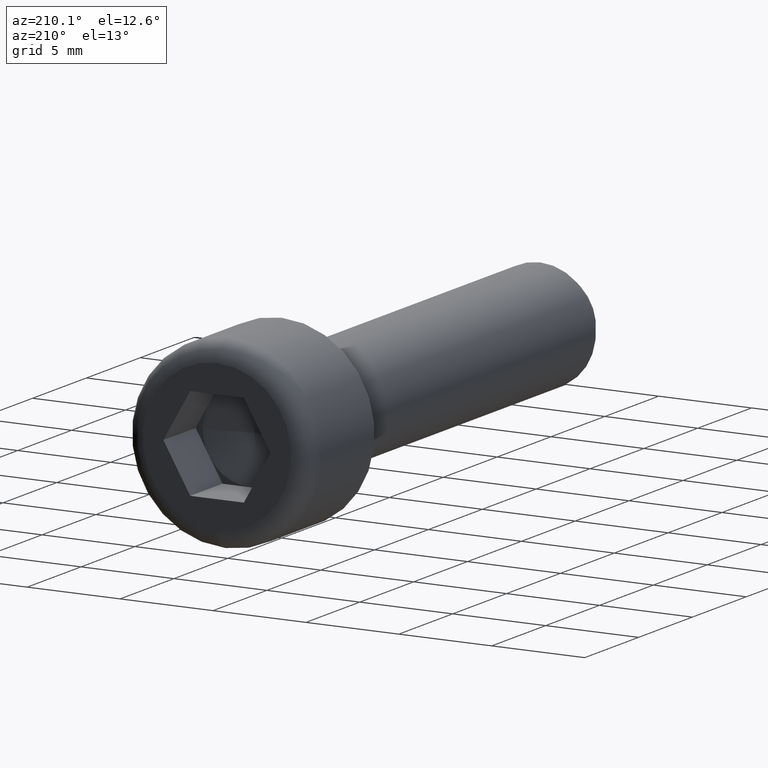
[diagram: clean part render]
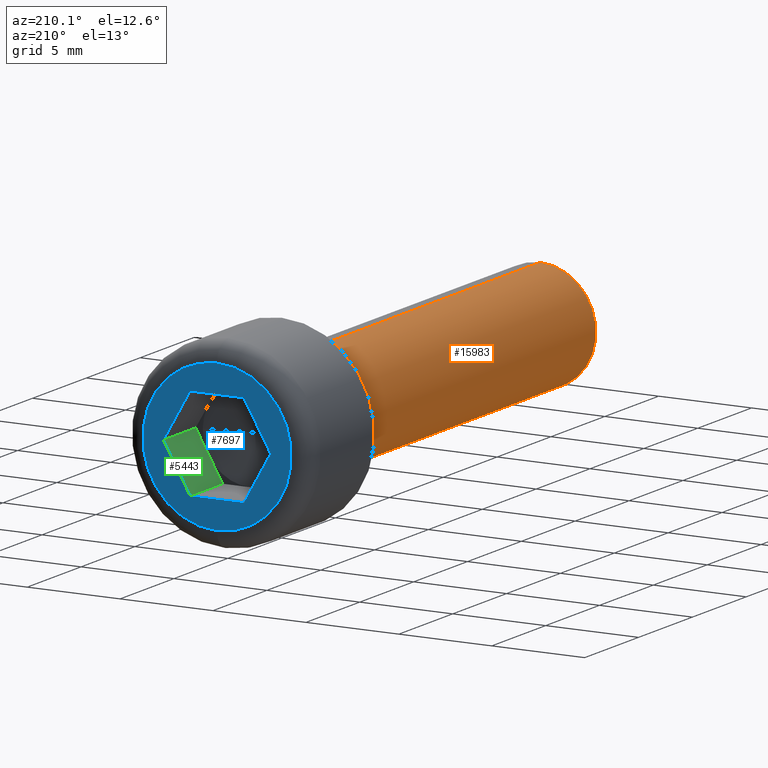
[diagram: same view with three faces highlighted in distinct colors, each labeled with its STEP entity id]
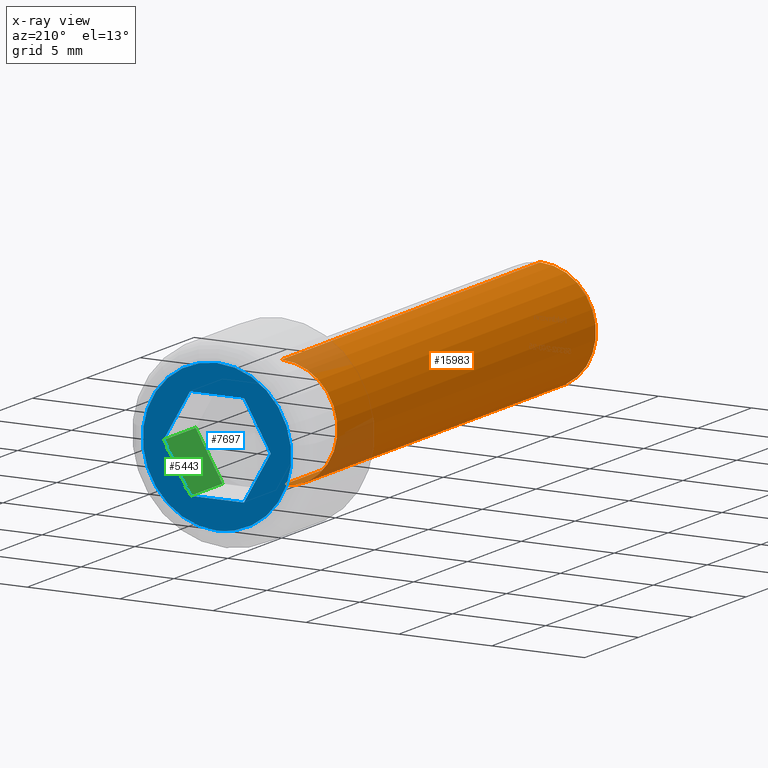
[diagram: x-ray of the same camera — body ghosted, the three highlighted faces saturated]
A machine part, auxiliary view with three faces highlighted in distinct colors.
The next image is the same camera in x-ray (body ghosted, the three faces saturated) — at least one of them is partly hidden behind the body in this view.
Their STEP definitions:

[orange] entity #15983 — the highlighted cylindrical surface (partial cylindrical patch) has radius 3 mm, axis along (-0, 1, -0).
#434 = CIRCLE ( 'NONE', #17756, 3.000000000000000444 ) ;
#1029 = VECTOR ( 'NONE', #8038, 1000.000000000000000 ) ;
#1299 = AXIS2_PLACEMENT_3D ( 'NONE', #11732, #17291, #15906 ) ;
#1413 = DIRECTION ( 'NONE',  ( -0.000000000000000000, 1.000000000000000000, -0.000000000000000000 ) ) ;
#2397 = VERTEX_POINT ( 'NONE', #9483 ) ;
#2411 = EDGE_CURVE ( 'NONE', #3885, #4233, #14657, .T. ) ;
#2423 = CARTESIAN_POINT ( 'NONE',  ( 3.673940397442060361E-16, 0.000000000000000000, -3.000000000000000444 ) ) ;
#2616 = VERTEX_POINT ( 'NONE', #18001 ) ;
#2949 = CARTESIAN_POINT ( 'NONE',  ( 3.673940397442060361E-16, -24.00000000000000355, -3.000000000000000444 ) ) ;
#3885 = VERTEX_POINT ( 'NONE', #2949 ) ;
#4233 = VERTEX_POINT ( 'NONE', #2423 ) ;
#4726 = ORIENTED_EDGE ( 'NONE', *, *, #6882, .T. ) ;
#4800 = DIRECTION ( 'NONE',  ( -0.000000000000000000, -1.000000000000000000, -0.000000000000000000 ) ) ;
#4867 = EDGE_LOOP ( 'NONE', ( #15668, #15138, #13286, #4726 ) ) ;
#5815 = DIRECTION ( 'NONE',  ( 0.000000000000000000, 0.000000000000000000, 1.000000000000000000 ) ) ;
#5991 = LINE ( 'NONE', #18125, #1029 ) ;
#6882 = EDGE_CURVE ( 'NONE', #2397, #4233, #434, .T. ) ;
#7355 = FACE_OUTER_BOUND ( 'NONE', #4867, .T. ) ;
#8038 = DIRECTION ( 'NONE',  ( -0.000000000000000000, 1.000000000000000000, -0.000000000000000000 ) ) ;
#9246 = CARTESIAN_POINT ( 'NONE',  ( 3.673940397442060361E-16, -25.00000000000000000, -3.000000000000000444 ) ) ;
#9483 = CARTESIAN_POINT ( 'NONE',  ( 0.000000000000000000, 0.000000000000000000, 3.000000000000000444 ) ) ;
#10051 = CARTESIAN_POINT ( 'NONE',  ( 0.000000000000000000, -25.00000000000000000, 0.000000000000000000 ) ) ;
#11732 = CARTESIAN_POINT ( 'NONE',  ( 0.000000000000000000, -24.00000000000000355, 0.000000000000000000 ) ) ;
#12011 = VECTOR ( 'NONE', #17883, 1000.000000000000000 ) ;
#12582 = EDGE_CURVE ( 'NONE', #3885, #2616, #14370, .T. ) ;
#13286 = ORIENTED_EDGE ( 'NONE', *, *, #15436, .T. ) ;
#13739 = AXIS2_PLACEMENT_3D ( 'NONE', #10051, #1413, #5815 ) ;
#14370 = CIRCLE ( 'NONE', #1299, 3.000000000000000444 ) ;
#14657 = LINE ( 'NONE', #9246, #12011 ) ;
#14997 = DIRECTION ( 'NONE',  ( 0.000000000000000000, 0.000000000000000000, 1.000000000000000000 ) ) ;
#15138 = ORIENTED_EDGE ( 'NONE', *, *, #12582, .T. ) ;
#15214 = CYLINDRICAL_SURFACE ( 'NONE', #13739, 3.000000000000000444 ) ;
#15436 = EDGE_CURVE ( 'NONE', #2616, #2397, #5991, .T. ) ;
#15668 = ORIENTED_EDGE ( 'NONE', *, *, #2411, .F. ) ;
#15906 = DIRECTION ( 'NONE',  ( 0.000000000000000000, 0.000000000000000000, -1.000000000000000000 ) ) ;
#15983 = ADVANCED_FACE ( 'NONE', ( #7355 ), #15214, .T. ) ;
#16441 = CARTESIAN_POINT ( 'NONE',  ( 0.000000000000000000, 0.000000000000000000, 0.000000000000000000 ) ) ;
#17291 = DIRECTION ( 'NONE',  ( 0.000000000000000000, 1.000000000000000000, 0.000000000000000000 ) ) ;
#17756 = AXIS2_PLACEMENT_3D ( 'NONE', #16441, #4800, #14997 ) ;
#17883 = DIRECTION ( 'NONE',  ( -0.000000000000000000, 1.000000000000000000, -0.000000000000000000 ) ) ;
#18001 = CARTESIAN_POINT ( 'NONE',  ( 0.000000000000000000, -24.00000000000000355, 3.000000000000000444 ) ) ;
#18125 = CARTESIAN_POINT ( 'NONE',  ( 0.000000000000000000, -25.00000000000000000, 3.000000000000000444 ) ) ;

[blue] entity #7697 — the highlighted planar face has unit normal (0, 1, 0).
#267 = EDGE_CURVE ( 'NONE', #4363, #9775, #15121, .T. ) ;
#269 = EDGE_CURVE ( 'NONE', #15814, #13543, #11811, .T. ) ;
#746 = DIRECTION ( 'NONE',  ( 0.000000000000000000, 1.000000000000000000, 0.000000000000000000 ) ) ;
#815 = VECTOR ( 'NONE', #12309, 1000.000000000000114 ) ;
#2253 = DIRECTION ( 'NONE',  ( 0.000000000000000000, 1.000000000000000000, 0.000000000000000000 ) ) ;
#2877 = FACE_BOUND ( 'NONE', #4039, .T. ) ;
#2933 = CARTESIAN_POINT ( 'NONE',  ( 1.443375672974064328, 6.000000000000000000, -2.500000000000000444 ) ) ;
#3025 = CARTESIAN_POINT ( 'NONE',  ( -1.443375672974064106, 6.000000000000000000, 2.499999999999999556 ) ) ;
#3130 = CIRCLE ( 'NONE', #3630, 4.000000000000000000 ) ;
#3495 = CARTESIAN_POINT ( 'NONE',  ( 2.886751345948129543, 6.000000000000000000, -5.708153566467252710E-16 ) ) ;
#3630 = AXIS2_PLACEMENT_3D ( 'NONE', #17776, #746, #15013 ) ;
#4039 = EDGE_LOOP ( 'NONE', ( #12035, #6547, #12973, #4732, #11047, #10027 ) ) ;
#4363 = VERTEX_POINT ( 'NONE', #5431 ) ;
#4430 = VECTOR ( 'NONE', #11291, 1000.000000000000114 ) ;
#4732 = ORIENTED_EDGE ( 'NONE', *, *, #10669, .F. ) ;
#4952 = EDGE_CURVE ( 'NONE', #9775, #4363, #3130, .T. ) ;
#5080 = LINE ( 'NONE', #11040, #815 ) ;
#5431 = CARTESIAN_POINT ( 'NONE',  ( 5.510910596163088569E-16, 6.000000000000000000, -4.000000000000000000 ) ) ;
#5580 = EDGE_CURVE ( 'NONE', #13543, #16003, #13330, .T. ) ;
#6071 = DIRECTION ( 'NONE',  ( 0.5000000000000001110, 0.000000000000000000, 0.8660254037844385966 ) ) ;
#6230 = CARTESIAN_POINT ( 'NONE',  ( 0.000000000000000000, 6.000000000000000000, 0.000000000000000000 ) ) ;
#6431 = VERTEX_POINT ( 'NONE', #3495 ) ;
#6444 = DIRECTION ( 'NONE',  ( 0.000000000000000000, 0.000000000000000000, 1.000000000000000000 ) ) ;
#6547 = ORIENTED_EDGE ( 'NONE', *, *, #5580, .F. ) ;
#6662 = VERTEX_POINT ( 'NONE', #2933 ) ;
#7147 = EDGE_CURVE ( 'NONE', #16003, #8440, #18662, .T. ) ;
#7213 = CARTESIAN_POINT ( 'NONE',  ( -2.886751345948129099, 6.000000000000000000, -4.252953893243341464E-16 ) ) ;
#7513 = PLANE ( 'NONE',  #8386 ) ;
#7697 = ADVANCED_FACE ( 'NONE', ( #2877, #18166 ), #7513, .T. ) ;
#8386 = AXIS2_PLACEMENT_3D ( 'NONE', #6230, #16282, #17545 ) ;
#8440 = VERTEX_POINT ( 'NONE', #12382 ) ;
#9294 = DIRECTION ( 'NONE',  ( -0.5000000000000001110, 0.000000000000000000, 0.8660254037844387076 ) ) ;
#9775 = VERTEX_POINT ( 'NONE', #14616 ) ;
#10027 = ORIENTED_EDGE ( 'NONE', *, *, #12469, .F. ) ;
#10669 = EDGE_CURVE ( 'NONE', #6662, #15814, #11196, .T. ) ;
#10804 = CARTESIAN_POINT ( 'NONE',  ( -1.443375672974064772, 6.000000000000000000, -2.500000000000000000 ) ) ;
#11040 = CARTESIAN_POINT ( 'NONE',  ( 2.886751345948129543, 6.000000000000000000, -5.708153566467252710E-16 ) ) ;
#11047 = ORIENTED_EDGE ( 'NONE', *, *, #14508, .F. ) ;
#11196 = LINE ( 'NONE', #17334, #12558 ) ;
#11246 = AXIS2_PLACEMENT_3D ( 'NONE', #17932, #2253, #6444 ) ;
#11291 = DIRECTION ( 'NONE',  ( 0.5000000000000002220, 0.000000000000000000, -0.8660254037844384856 ) ) ;
#11422 = CARTESIAN_POINT ( 'NONE',  ( 1.443375672974064328, 6.000000000000000000, 2.499999999999999556 ) ) ;
#11717 = DIRECTION ( 'NONE',  ( -1.000000000000000000, 0.000000000000000000, 1.502314598737159278E-16 ) ) ;
#11811 = LINE ( 'NONE', #10804, #15806 ) ;
#11955 = DIRECTION ( 'NONE',  ( 1.000000000000000000, 0.000000000000000000, 0.000000000000000000 ) ) ;
#12035 = ORIENTED_EDGE ( 'NONE', *, *, #7147, .F. ) ;
#12309 = DIRECTION ( 'NONE',  ( -0.5000000000000002220, 0.000000000000000000, -0.8660254037844384856 ) ) ;
#12382 = CARTESIAN_POINT ( 'NONE',  ( 1.443375672974064772, 6.000000000000000000, 2.499999999999999556 ) ) ;
#12469 = EDGE_CURVE ( 'NONE', #8440, #6431, #15244, .T. ) ;
#12558 = VECTOR ( 'NONE', #11717, 1000.000000000000000 ) ;
#12973 = ORIENTED_EDGE ( 'NONE', *, *, #269, .F. ) ;
#13330 = LINE ( 'NONE', #7213, #14642 ) ;
#13543 = VERTEX_POINT ( 'NONE', #17795 ) ;
#14508 = EDGE_CURVE ( 'NONE', #6431, #6662, #5080, .T. ) ;
#14616 = CARTESIAN_POINT ( 'NONE',  ( 0.000000000000000000, 6.000000000000000000, 4.000000000000000000 ) ) ;
#14642 = VECTOR ( 'NONE', #6071, 1000.000000000000000 ) ;
#14685 = CARTESIAN_POINT ( 'NONE',  ( -1.443375672974064106, 6.000000000000000000, 2.499999999999999556 ) ) ;
#14834 = VECTOR ( 'NONE', #11955, 1000.000000000000000 ) ;
#15013 = DIRECTION ( 'NONE',  ( 0.000000000000000000, 0.000000000000000000, 1.000000000000000000 ) ) ;
#15121 = CIRCLE ( 'NONE', #11246, 4.000000000000000000 ) ;
#15211 = ORIENTED_EDGE ( 'NONE', *, *, #267, .T. ) ;
#15244 = LINE ( 'NONE', #11422, #4430 ) ;
#15806 = VECTOR ( 'NONE', #9294, 999.9999999999998863 ) ;
#15814 = VERTEX_POINT ( 'NONE', #18376 ) ;
#16003 = VERTEX_POINT ( 'NONE', #3025 ) ;
#16282 = DIRECTION ( 'NONE',  ( 0.000000000000000000, 1.000000000000000000, 0.000000000000000000 ) ) ;
#17056 = EDGE_LOOP ( 'NONE', ( #17152, #15211 ) ) ;
#17152 = ORIENTED_EDGE ( 'NONE', *, *, #4952, .T. ) ;
#17334 = CARTESIAN_POINT ( 'NONE',  ( 1.443375672974064328, 6.000000000000000000, -2.500000000000000444 ) ) ;
#17545 = DIRECTION ( 'NONE',  ( 0.000000000000000000, -0.000000000000000000, 1.000000000000000000 ) ) ;
#17776 = CARTESIAN_POINT ( 'NONE',  ( 0.000000000000000000, 6.000000000000000000, 0.000000000000000000 ) ) ;
#17795 = CARTESIAN_POINT ( 'NONE',  ( -2.886751345948129099, 6.000000000000000000, -4.252953893243341464E-16 ) ) ;
#17932 = CARTESIAN_POINT ( 'NONE',  ( 0.000000000000000000, 6.000000000000000000, 0.000000000000000000 ) ) ;
#18166 = FACE_OUTER_BOUND ( 'NONE', #17056, .T. ) ;
#18376 = CARTESIAN_POINT ( 'NONE',  ( -1.443375672974064772, 6.000000000000000000, -2.500000000000000000 ) ) ;
#18662 = LINE ( 'NONE', #14685, #14834 ) ;

[green] entity #5443 — the highlighted planar face has unit normal (0.866, 0, -0.5).
#815 = VECTOR ( 'NONE', #12309, 1000.000000000000114 ) ;
#1119 = CARTESIAN_POINT ( 'NONE',  ( 2.165063509461096380, 3.000000000000000000, -1.250000000000000444 ) ) ;
#1408 = CARTESIAN_POINT ( 'NONE',  ( 1.443375672974064328, 3.000000000000000000, -2.500000000000000444 ) ) ;
#1442 = ORIENTED_EDGE ( 'NONE', *, *, #14735, .F. ) ;
#2747 = PLANE ( 'NONE',  #12742 ) ;
#2885 = DIRECTION ( 'NONE',  ( -0.5000000000000002220, 0.000000000000000000, -0.8660254037844384856 ) ) ;
#2933 = CARTESIAN_POINT ( 'NONE',  ( 1.443375672974064328, 6.000000000000000000, -2.500000000000000444 ) ) ;
#3495 = CARTESIAN_POINT ( 'NONE',  ( 2.886751345948129543, 6.000000000000000000, -5.708153566467252710E-16 ) ) ;
#3662 = VERTEX_POINT ( 'NONE', #13712 ) ;
#4396 = CARTESIAN_POINT ( 'NONE',  ( 2.886751345948129543, 3.000000000000000000, -5.708153566467252710E-16 ) ) ;
#5080 = LINE ( 'NONE', #11040, #815 ) ;
#5443 = ADVANCED_FACE ( 'NONE', ( #7460 ), #2747, .F. ) ;
#5547 = VECTOR ( 'NONE', #15931, 1000.000000000000114 ) ;
#6431 = VERTEX_POINT ( 'NONE', #3495 ) ;
#6662 = VERTEX_POINT ( 'NONE', #2933 ) ;
#6942 = VERTEX_POINT ( 'NONE', #13816 ) ;
#7460 = FACE_OUTER_BOUND ( 'NONE', #7944, .T. ) ;
#7944 = EDGE_LOOP ( 'NONE', ( #11502, #1442, #17815, #13573, #15470 ) ) ;
#8772 = CARTESIAN_POINT ( 'NONE',  ( 2.886751345948129543, 3.000000000000000000, -5.708153566467252710E-16 ) ) ;
#8863 = EDGE_CURVE ( 'NONE', #17595, #3662, #18400, .T. ) ;
#9967 = DIRECTION ( 'NONE',  ( 0.8660254037844385966, 0.000000000000000000, -0.5000000000000003331 ) ) ;
#10088 = LINE ( 'NONE', #11925, #13238 ) ;
#10288 = EDGE_CURVE ( 'NONE', #6942, #6431, #10088, .T. ) ;
#10300 = VECTOR ( 'NONE', #14612, 1000.000000000000000 ) ;
#11040 = CARTESIAN_POINT ( 'NONE',  ( 2.886751345948129543, 6.000000000000000000, -5.708153566467252710E-16 ) ) ;
#11207 = LINE ( 'NONE', #4396, #5547 ) ;
#11502 = ORIENTED_EDGE ( 'NONE', *, *, #14508, .T. ) ;
#11602 = CARTESIAN_POINT ( 'NONE',  ( 2.886751345948129543, 3.000000000000000000, -5.708153566467252710E-16 ) ) ;
#11921 = VECTOR ( 'NONE', #2885, 1000.000000000000114 ) ;
#11925 = CARTESIAN_POINT ( 'NONE',  ( 2.886751345948129543, 3.000000000000000000, -5.708153566467252710E-16 ) ) ;
#12309 = DIRECTION ( 'NONE',  ( -0.5000000000000002220, 0.000000000000000000, -0.8660254037844384856 ) ) ;
#12742 = AXIS2_PLACEMENT_3D ( 'NONE', #11602, #9967, #17599 ) ;
#13238 = VECTOR ( 'NONE', #13489, 1000.000000000000000 ) ;
#13489 = DIRECTION ( 'NONE',  ( -0.000000000000000000, 1.000000000000000000, -0.000000000000000000 ) ) ;
#13573 = ORIENTED_EDGE ( 'NONE', *, *, #16055, .F. ) ;
#13712 = CARTESIAN_POINT ( 'NONE',  ( 1.443375672974064328, 3.000000000000000000, -2.500000000000000444 ) ) ;
#13816 = CARTESIAN_POINT ( 'NONE',  ( 2.886751345948129543, 3.000000000000000000, -5.708153566467252710E-16 ) ) ;
#14508 = EDGE_CURVE ( 'NONE', #6431, #6662, #5080, .T. ) ;
#14612 = DIRECTION ( 'NONE',  ( -0.000000000000000000, 1.000000000000000000, -0.000000000000000000 ) ) ;
#14735 = EDGE_CURVE ( 'NONE', #3662, #6662, #14993, .T. ) ;
#14993 = LINE ( 'NONE', #1408, #10300 ) ;
#15470 = ORIENTED_EDGE ( 'NONE', *, *, #10288, .T. ) ;
#15931 = DIRECTION ( 'NONE',  ( -0.5000000000000002220, 0.000000000000000000, -0.8660254037844384856 ) ) ;
#16055 = EDGE_CURVE ( 'NONE', #6942, #17595, #11207, .T. ) ;
#17595 = VERTEX_POINT ( 'NONE', #1119 ) ;
#17599 = DIRECTION ( 'NONE',  ( -0.5000000000000002220, 0.000000000000000000, -0.8660254037844384856 ) ) ;
#17815 = ORIENTED_EDGE ( 'NONE', *, *, #8863, .F. ) ;
#18400 = LINE ( 'NONE', #8772, #11921 ) ;